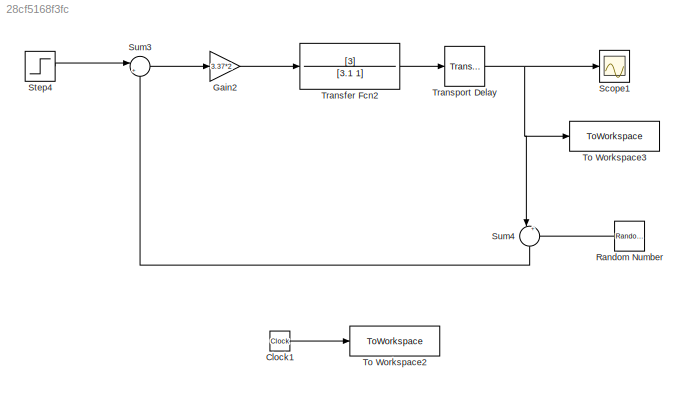
MODEL slx_28cf5168f3fc
KIND model
CONFIG AbsTol = auto
CONFIG EnableMultiTasking = off
CONFIG FixedStep = auto
CONFIG MaxStep = auto
CONFIG MinStep = auto
CONFIG RelTol = 1e-3
CONFIG SampleTimeConstraint = Unconstrained
CONFIG SolverName = VariableStepAuto
CONFIG StartTime = 0.0
CONFIG StopTime = 10.0
BLOCK [Clock] Clock1
BLOCK [Gain] Gain2
  Gain = 3.37*2
BLOCK [RandomNumber] Random Number
  NameLocation = top
  SampleTime = 0
  Seed = 061233
  Variance = 0.15
BLOCK [Scope] Scope1
  Floating = off
  NumInputPorts = 1
  Ports = [1]
  ScopeSpecificationString = Simulink.scopes.TimeScopeBlockCfg('CurrentConfiguration', extmgr.ConfigurationSet(extmgr.Configuration('Core','General UI',true),extmgr.Configuration('Core','Source UI',true),extmgr.Configuration('Sources','WiredSimulink',true),extmgr.Configuration('Visuals','Time Domain',true,'SerializedDisplays',{struct('MinYLimReal','-6.04417','MaxYLimReal','54.39753','YLabelReal','','MinYLimMag','0.00000','Max...<+1368ch>
BLOCK [Step] Step4
  After = 30
  SampleTime = 0
  Time = 0
BLOCK [Sum] Sum3
  Inputs = |+-
  NameLocation = top
  Ports = [2, 1]
BLOCK [Sum] Sum4
  Inputs = |++
  NameLocation = left
  Ports = [2, 1]
BLOCK [ToWorkspace] To Workspace2
  FixptAsFi = on
  MaxDataPoints = inf
  Ports = [1]
  SampleTime = -1
  SaveFormat = Timeseries
  VariableName = Time
BLOCK [ToWorkspace] To Workspace3
  FixptAsFi = on
  MaxDataPoints = inf
  Ports = [1]
  SampleTime = -1
  SaveFormat = Timeseries
  VariableName = Y
BLOCK [TransferFcn] Transfer Fcn2
  Denominator = [3.1 1]
  Numerator = [3]
BLOCK [TransportDelay] Transport Delay
  DelayTime = 0.15
  Ports = [1, 1]
LINE Clock1:1 -> To Workspace2:1
LINE Gain2:1 -> Transfer Fcn2:1
LINE Random Number:1 -> Sum4:2
LINE Step4:1 -> Sum3:1
LINE Sum3:1 -> Gain2:1
LINE Sum4:1 -> Sum3:2
LINE Transfer Fcn2:1 -> Transport Delay:1
NET Transport Delay:1 -> Scope1:1, Sum4:1, To Workspace3:1
note: NET lines group one-source signal fan-out (src -> all destinations, sorted); 1:1 wires keep LINE
